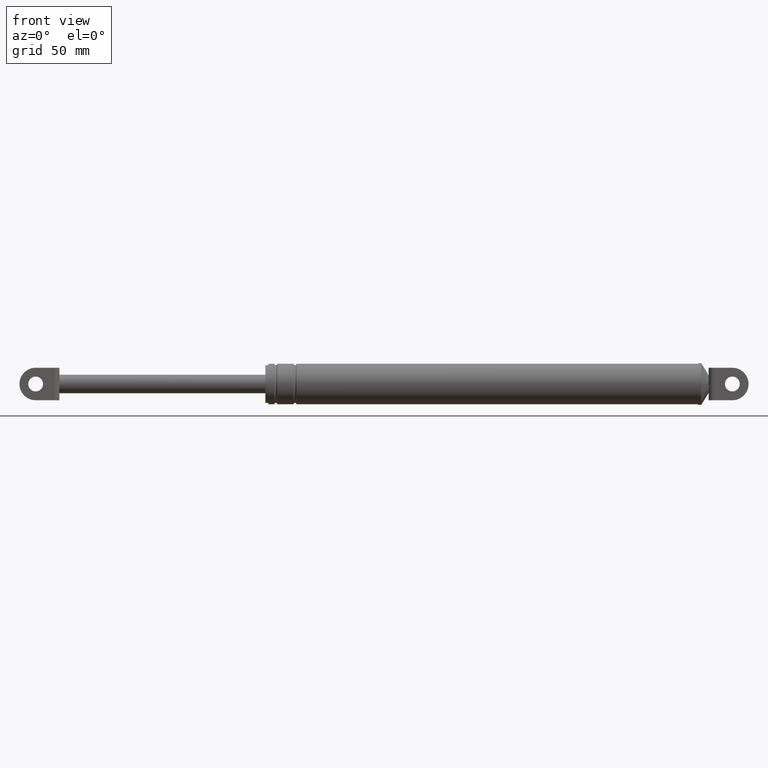
[diagram: clean part render]
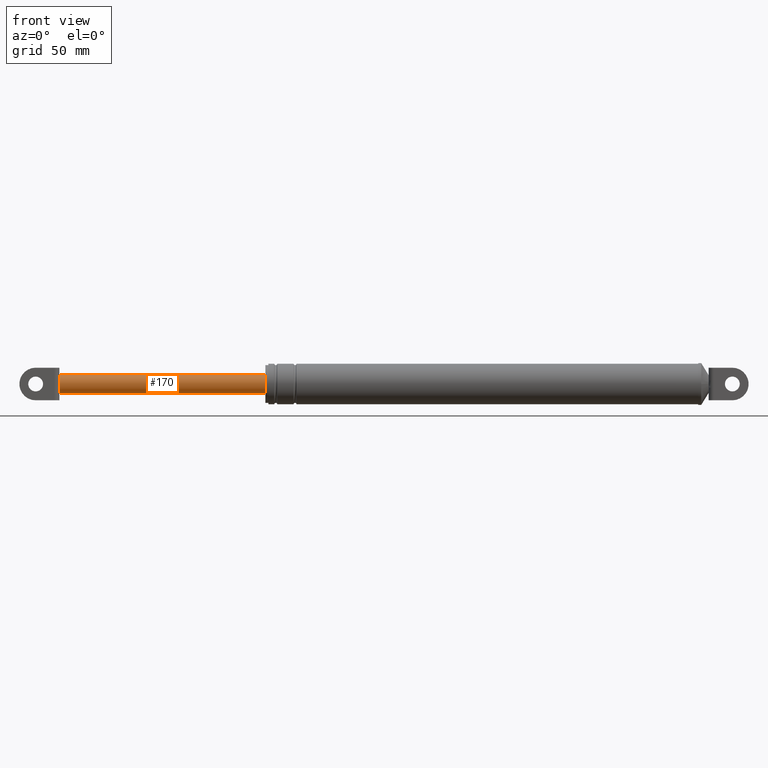
[diagram: same view with one face highlighted and labeled with its STEP entity id]
A machine part, front view. The second image highlights one B-rep face of the part: STEP entity #170.
In plain terms, the highlighted cylindrical surface (edge-blend (fillet) strip) has radius 6.25 mm, axis along (-1, -0, -0).
Its self-contained STEP definition (entity closure, byte-faithful):
#170=ADVANCED_FACE('',(#767),#766,.T.);
#766=CYLINDRICAL_SURFACE('',#1942,6.25000000000E+000);
#767=FACE_OUTER_BOUND('',#1943,.T.);
#1939=CARTESIAN_POINT('',(-2.33161286771E+001,9.01953039248E-014,1.88612980532E+002));
#1940=DIRECTION('',(-1.00000000000E+000,-0.00000000000E+000,-0.00000000000E+000));
#1941=DIRECTION('',(0.00000000000E+000,5.27486867393E-014,-1.00000000000E+000));
#1942=AXIS2_PLACEMENT_3D('',#1939,#1940,#1941);
#1943=EDGE_LOOP('',(#2257,#2258,#2259,#2260,#2261,#2262));
#2257=ORIENTED_EDGE('',*,*,#2423,.F.);
#2258=ORIENTED_EDGE('',*,*,#2386,.F.);
#2259=ORIENTED_EDGE('',*,*,#2429,.F.);
#2260=ORIENTED_EDGE('',*,*,#2437,.F.);
#2261=ORIENTED_EDGE('',*,*,#2435,.F.);
#2262=ORIENTED_EDGE('',*,*,#2438,.T.);
#2386=EDGE_CURVE('',#3108,#3094,#3115,.T.);
#2423=EDGE_CURVE('',#3094,#3363,#3364,.T.);
#2429=EDGE_CURVE('',#3396,#3108,#3403,.T.);
#2435=EDGE_CURVE('',#3441,#3442,#3443,.T.);
#2437=EDGE_CURVE('',#3442,#3396,#3455,.T.);
#2438=EDGE_CURVE('',#3441,#3363,#3461,.T.);
#3094=VERTEX_POINT('',#3907);
#3108=VERTEX_POINT('',#3916);
#3115=CIRCLE('',#3924,6.25000000000E+000);
#3363=VERTEX_POINT('',#4085);
#3364=CIRCLE('',#4089,6.25000000000E+000);
#3396=VERTEX_POINT('',#4108);
#3403=CIRCLE('',#4116,6.25000000000E+000);
#3441=VERTEX_POINT('',#4137);
#3442=VERTEX_POINT('',#4138);
#3443=CIRCLE('',#4142,6.25000000000E+000);
#3455=(BOUNDED_CURVE() B_SPLINE_CURVE(1,(#4147,#4148),.UNSPECIFIED.,.F.,.F.) B_SPLINE_CURVE_WITH_KNOTS((2,2),(6.28930816424E-002,9.37106918113E-001),.UNSPECIFIED.) CURVE() GEOMETRIC_REPRESENTATION_ITEM() RATIONAL_B_SPLINE_CURVE((1.00000000000E+000,1.00000000000E+000)) REPRESENTATION_ITEM('') );
#3461=(BOUNDED_CURVE() B_SPLINE_CURVE(1,(#4149,#4150),.UNSPECIFIED.,.F.,.F.) B_SPLINE_CURVE_WITH_KNOTS((2,2),(6.28930817610E-002,9.37106918239E-001),.UNSPECIFIED.) CURVE() GEOMETRIC_REPRESENTATION_ITEM() RATIONAL_B_SPLINE_CURVE((7.50000000000E-001,7.50000000000E-001)) REPRESENTATION_ITEM('') );
#3907=CARTESIAN_POINT('',(-1.33161286771E+001,-5.49999700000E+000,1.91581571612E+002));
#3916=CARTESIAN_POINT('',(-1.33161286771E+001,-5.49999700000E+000,1.85644389452E+002));
#3921=CARTESIAN_POINT('',(-1.33161286771E+001,1.57918123023E-012,1.88612980532E+002));
#3922=DIRECTION('',(-1.00000000000E+000,-1.60866779879E-015,-1.20825998322E-015));
#3923=DIRECTION('',(-1.98951966013E-015,8.79999520000E-001,4.74974572793E-001));
#3924=AXIS2_PLACEMENT_3D('',#3921,#3922,#3923);
#4085=CARTESIAN_POINT('',(-1.33161286771E+001,7.57709684851E-007,1.94862980532E+002));
#4086=CARTESIAN_POINT('',(-1.33161286771E+001,-2.25597318604E-013,1.88612980532E+002));
#4087=DIRECTION('',(-1.00000000000E+000,1.53360026379E-015,-7.48956028802E-016));
#4088=DIRECTION('',(1.70530256582E-015,8.79999520000E-001,-4.74974572793E-001));
#4089=AXIS2_PLACEMENT_3D('',#4086,#4087,#4088);
#4108=CARTESIAN_POINT('',(-1.33161286771E+001,-3.85307595801E-012,1.82362980532E+002));
#4113=CARTESIAN_POINT('',(-1.33161286771E+001,8.10906897186E-013,1.88612980532E+002));
#4114=DIRECTION('',(-1.00000000000E+000,6.58696557818E-017,1.22038670680E-016));
#4115=DIRECTION('',(-0.00000000000E+000,-8.79999520000E-001,4.74974572793E-001));
#4116=AXIS2_PLACEMENT_3D('',#4113,#4114,#4115);
#4137=CARTESIAN_POINT('',(1.25683871323E+002,9.01953039248E-014,1.94862980532E+002));
#4138=CARTESIAN_POINT('',(1.25683871323E+002,9.14823772291E-014,1.82362980532E+002));
#4139=CARTESIAN_POINT('',(1.25683871323E+002,9.01953039248E-014,1.88612980532E+002));
#4140=DIRECTION('',(1.00000000000E+000,0.00000000000E+000,-0.00000000000E+000));
#4141=DIRECTION('',(0.00000000000E+000,-1.22460635382E-016,1.00000000000E+000));
#4142=AXIS2_PLACEMENT_3D('',#4139,#4140,#4141);
#4147=CARTESIAN_POINT('',(1.25683871342E+002,4.19874596045E-013,1.82362980532E+002));
#4148=CARTESIAN_POINT('',(-1.33161286571E+001,4.19874596045E-013,1.82362980532E+002));
#4149=CARTESIAN_POINT('',(1.25683871323E+002,-2.39512113846E-013,1.94862980532E+002));
#4150=CARTESIAN_POINT('',(-1.33161286771E+001,-2.39512113846E-013,1.94862980532E+002));